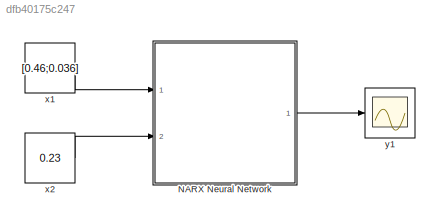
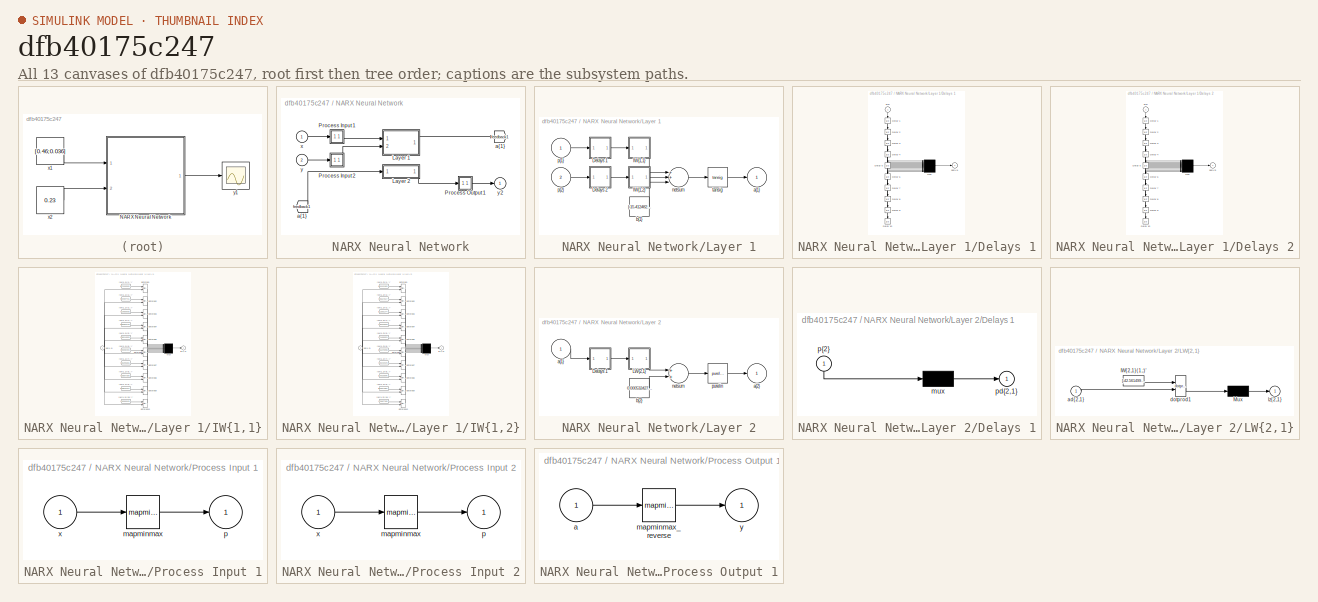
[diagram: thumbnail index - all 13 canvases of the model, root first then tree order]
MODEL slx_dfb40175c247
KIND model
CONFIG AbsTol = auto
CONFIG EnableMultiTasking = off
CONFIG FixedStep = auto
CONFIG MaxStep = auto
CONFIG MinStep = auto
CONFIG RelTol = 1e-3
CONFIG SampleTimeConstraint = Unconstrained
CONFIG Solver = VariableStepAuto
CONFIG SolverName = VariableStepAuto
CONFIG StartTime = 0.0
CONFIG StopTime = 10.0
BLOCK [SubSystem] NARX Neural Network
  Ports = [2, 1]
  RequestExecContextInheritance = off
BLOCK [From] NARX Neural Network/ a{1} 
  GotoTag = feedback1
BLOCK [SubSystem] NARX Neural Network/Layer 1
  Ports = [2, 1]
  RequestExecContextInheritance = off
BLOCK [SubSystem] NARX Neural Network/Layer 1/Delays 1
  Ports = [1, 1]
  RequestExecContextInheritance = off
BLOCK [UnitDelay] NARX Neural Network/Layer 1/Delays 1/Delay 1
  InitialCondition = pi_input_1_delayed_1
BLOCK [UnitDelay] NARX Neural Network/Layer 1/Delays 1/Delay 10
  InitialCondition = pi_input_1_delayed_10
BLOCK [UnitDelay] NARX Neural Network/Layer 1/Delays 1/Delay 2
  InitialCondition = pi_input_1_delayed_2
BLOCK [UnitDelay] NARX Neural Network/Layer 1/Delays 1/Delay 3
  InitialCondition = pi_input_1_delayed_3
BLOCK [UnitDelay] NARX Neural Network/Layer 1/Delays 1/Delay 4
  InitialCondition = pi_input_1_delayed_4
BLOCK [UnitDelay] NARX Neural Network/Layer 1/Delays 1/Delay 5
  InitialCondition = pi_input_1_delayed_5
BLOCK [UnitDelay] NARX Neural Network/Layer 1/Delays 1/Delay 6
  InitialCondition = pi_input_1_delayed_6
BLOCK [UnitDelay] NARX Neural Network/Layer 1/Delays 1/Delay 7
  InitialCondition = pi_input_1_delayed_7
BLOCK [UnitDelay] NARX Neural Network/Layer 1/Delays 1/Delay 8
  InitialCondition = pi_input_1_delayed_8
BLOCK [UnitDelay] NARX Neural Network/Layer 1/Delays 1/Delay 9
  InitialCondition = pi_input_1_delayed_9
BLOCK [Mux] NARX Neural Network/Layer 1/Delays 1/mux
  Inputs = 10
  Ports = [10, 1]
BLOCK [Outport] NARX Neural Network/Layer 1/Delays 1/pd{1,1}
  IconDisplay = Port number
BLOCK [Inport] NARX Neural Network/Layer 1/Delays 1/p{1}
  IconDisplay = Port number
  PortDimensions = 2
  SampleTime = 1
BLOCK [SubSystem] NARX Neural Network/Layer 1/Delays 2
  Ports = [1, 1]
  RequestExecContextInheritance = off
BLOCK [UnitDelay] NARX Neural Network/Layer 1/Delays 2/Delay 1
  InitialCondition = pi_input_2_delayed_1
BLOCK [UnitDelay] NARX Neural Network/Layer 1/Delays 2/Delay 10
  InitialCondition = pi_input_2_delayed_10
BLOCK [UnitDelay] NARX Neural Network/Layer 1/Delays 2/Delay 2
  InitialCondition = pi_input_2_delayed_2
BLOCK [UnitDelay] NARX Neural Network/Layer 1/Delays 2/Delay 3
  InitialCondition = pi_input_2_delayed_3
BLOCK [UnitDelay] NARX Neural Network/Layer 1/Delays 2/Delay 4
  InitialCondition = pi_input_2_delayed_4
BLOCK [UnitDelay] NARX Neural Network/Layer 1/Delays 2/Delay 5
  InitialCondition = pi_input_2_delayed_5
BLOCK [UnitDelay] NARX Neural Network/Layer 1/Delays 2/Delay 6
  InitialCondition = pi_input_2_delayed_6
BLOCK [UnitDelay] NARX Neural Network/Layer 1/Delays 2/Delay 7
  InitialCondition = pi_input_2_delayed_7
BLOCK [UnitDelay] NARX Neural Network/Layer 1/Delays 2/Delay 8
  InitialCondition = pi_input_2_delayed_8
BLOCK [UnitDelay] NARX Neural Network/Layer 1/Delays 2/Delay 9
  InitialCondition = pi_input_2_delayed_9
BLOCK [Mux] NARX Neural Network/Layer 1/Delays 2/mux
  Inputs = 10
  Ports = [10, 1]
BLOCK [Outport] NARX Neural Network/Layer 1/Delays 2/pd{1,2}
  IconDisplay = Port number
BLOCK [Inport] NARX Neural Network/Layer 1/Delays 2/p{1}
  IconDisplay = Port number
  PortDimensions = 1
  SampleTime = 1
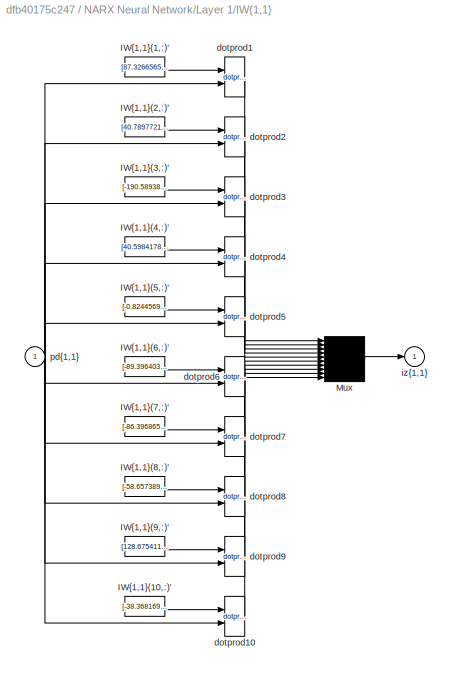
BLOCK [SubSystem] NARX Neural Network/Layer 1/IW{1,1}
  Ports = [1, 1]
  RequestExecContextInheritance = off
BLOCK [Constant] NARX Neural Network/Layer 1/IW{1,1}/IW{1,1}(1,:)'
  Value = [87.3266565234524705374496988952159881591796875;-18.855420592628409082180951372720301151275634765625;-85.7641266500232148928262176923453807830810546875;-21.9098173463618621781279216520488262176513671875;18.7332238363806169445524574257433414459228515625;10.13996998740918087378304335288703441619873046875;-2.002347743872309848711665836162865161895751953125;8.743271869930381967606081161648035049438476...<+637ch>
BLOCK [Constant] NARX Neural Network/Layer 1/IW{1,1}/IW{1,1}(10,:)'
  Value = [-38.368169144587199070883798412978649139404296875;-153.072201241303929464265820570290088653564453125;-156.697550338811396386518026702105998992919921875;-382.35661975705323811780544929206371307373046875;139.886976715736267351530841551721096038818359375;661.4048502399822382358252070844173431396484375;163.5284102239508001730428077280521392822265625;-399.56930623810745828450308181345462799072265625;-...<+593ch>
BLOCK [Constant] NARX Neural Network/Layer 1/IW{1,1}/IW{1,1}(2,:)'
  Value = [40.78977216390131133039176347665488719940185546875;-17.55989027664242740911504370160400867462158203125;-32.9393776400963105288610677234828472137451171875;9.2753383531786113280759309418499469757080078125;9.1986858975187555387265092576853930950164794921875;-11.36475807986781916270047076977789402008056640625;3.380536542940958621983327248017303645610809326171875;14.94354449269568618774428614415228366...<+659ch>
BLOCK [Constant] NARX Neural Network/Layer 1/IW{1,1}/IW{1,1}(3,:)'
  Value = [-190.58938724002308617855305783450603485107421875;16.933674812675004517359411693178117275238037109375;103.608582125062952172811492346227169036865234375;57.46451893904804109070028061978518962860107421875;-198.089944361329145294803311116993427276611328125;-142.6501932710258415681892074644565582275390625;-76.1733895353753638346461229957640171051025390625;273.18649483789488385809818282723426818847656...<+601ch>
BLOCK [Constant] NARX Neural Network/Layer 1/IW{1,1}/IW{1,1}(4,:)'
  Value = [40.5984178844106367023414350114762783050537109375;-17.305270158794602508578464039601385593414306640625;-32.774236652394762359108426608145236968994140625;9.1777831307826058804266722290776669979095458984375;8.9358341877345868198290190775878727436065673828125;-11.2720701320428151603891819831915199756622314453125;3.49951613636606762014480409561656415462493896484375;14.87295536234205073355951753910630...<+651ch>
BLOCK [Constant] NARX Neural Network/Layer 1/IW{1,1}/IW{1,1}(5,:)'
  Value = [-0.82445698182373428064551035276963375508785247802734375;7.8764559996773844119388741091825067996978759765625;-6.2535610694918641883077725651673972606658935546875;4.53950468022659503475324527244083583354949951171875;-1.325816767795277240082896241801790893077850341796875;-3.088073168549824831785599599243141710758209228515625;-9.250084820864390877659388934262096881866455078125;-3.3792446697136657718...<+668ch>
BLOCK [Constant] NARX Neural Network/Layer 1/IW{1,1}/IW{1,1}(6,:)'
  Value = [-89.39640383441206950010382570326328277587890625;276.4756909022368063233443535864353179931640625;82.2655819054169086257388698868453502655029296875;11.3719358966937047483725109486840665340423583984375;93.01736668724896617277408950030803680419921875;-216.203423916639650315119070000946521759033203125;-202.793397617705608126925653778016567230224609375;36.1055719501073184574124752543866634368896484375...<+612ch>
BLOCK [Constant] NARX Neural Network/Layer 1/IW{1,1}/IW{1,1}(7,:)'
  Value = [-86.3968657764367122808835119940340518951416015625;18.44654327674872007492012926377356052398681640625;84.61863840558226002031005918979644775390625;21.572623247197380891293505555950105190277099609375;-18.437794520745246273918382939882576465606689453125;-9.585462867030219769048926536925137042999267578125;1.46269617779315996841660307836718857288360595703125;-8.786889488254290725421924435067921876907...<+644ch>
BLOCK [Constant] NARX Neural Network/Layer 1/IW{1,1}/IW{1,1}(8,:)'
  Value = [-58.6573891689925090986434952355921268463134765625;10.5602222311056692660713451914489269256591796875;52.58787049176599026623080135323107242584228515625;-2.187691415909850167764716388774104416370391845703125;3.604270025283075273847543940064497292041778564453125;5.79841457534296811360263745882548391819000244140625;-15.238229940982908061641865060664713382720947265625;-20.4823483818498068842473003314...<+647ch>
BLOCK [Constant] NARX Neural Network/Layer 1/IW{1,1}/IW{1,1}(9,:)'
  Value = [128.67541168958717889836407266557216644287109375;-78.5729914978140158154928940348327159881591796875;-109.2066697833443100762451649643480777740478515625;19.233706614368610843257556552998721599578857421875;-2.944563980055236118715811244328506290912628173828125;12.6737914294444973251074770814739167690277099609375;-66.7068484238330512425818596966564655303955078125;2.8506893641286326079864466009894385...<+640ch>
BLOCK [Mux] NARX Neural Network/Layer 1/IW{1,1}/Mux
  Inputs = 10
  Ports = [10, 1]
BLOCK [Reference] NARX Neural Network/Layer 1/IW{1,1}/dotprod1  REF=neural/Weight Functions/dotprod
  Ports = [2, 1]
  SourceBlock = neural/Weight Functions/dotprod
  SourceProductBaseCode = NN
  SourceProductName = Neural Network Toolbox
  SourceType = DOTPROD
BLOCK [Reference] NARX Neural Network/Layer 1/IW{1,1}/dotprod10  REF=neural/Weight Functions/dotprod
  Ports = [2, 1]
  SourceBlock = neural/Weight Functions/dotprod
  SourceProductBaseCode = NN
  SourceProductName = Neural Network Toolbox
  SourceType = DOTPROD
BLOCK [Reference] NARX Neural Network/Layer 1/IW{1,1}/dotprod2  REF=neural/Weight Functions/dotprod
  Ports = [2, 1]
  SourceBlock = neural/Weight Functions/dotprod
  SourceProductBaseCode = NN
  SourceProductName = Neural Network Toolbox
  SourceType = DOTPROD
BLOCK [Reference] NARX Neural Network/Layer 1/IW{1,1}/dotprod3  REF=neural/Weight Functions/dotprod
  Ports = [2, 1]
  SourceBlock = neural/Weight Functions/dotprod
  SourceProductBaseCode = NN
  SourceProductName = Neural Network Toolbox
  SourceType = DOTPROD
BLOCK [Reference] NARX Neural Network/Layer 1/IW{1,1}/dotprod4  REF=neural/Weight Functions/dotprod
  Ports = [2, 1]
  SourceBlock = neural/Weight Functions/dotprod
  SourceProductBaseCode = NN
  SourceProductName = Neural Network Toolbox
  SourceType = DOTPROD
BLOCK [Reference] NARX Neural Network/Layer 1/IW{1,1}/dotprod5  REF=neural/Weight Functions/dotprod
  Ports = [2, 1]
  SourceBlock = neural/Weight Functions/dotprod
  SourceProductBaseCode = NN
  SourceProductName = Neural Network Toolbox
  SourceType = DOTPROD
BLOCK [Reference] NARX Neural Network/Layer 1/IW{1,1}/dotprod6  REF=neural/Weight Functions/dotprod
  Ports = [2, 1]
  SourceBlock = neural/Weight Functions/dotprod
  SourceProductBaseCode = NN
  SourceProductName = Neural Network Toolbox
  SourceType = DOTPROD
BLOCK [Reference] NARX Neural Network/Layer 1/IW{1,1}/dotprod7  REF=neural/Weight Functions/dotprod
  Ports = [2, 1]
  SourceBlock = neural/Weight Functions/dotprod
  SourceProductBaseCode = NN
  SourceProductName = Neural Network Toolbox
  SourceType = DOTPROD
BLOCK [Reference] NARX Neural Network/Layer 1/IW{1,1}/dotprod8  REF=neural/Weight Functions/dotprod
  Ports = [2, 1]
  SourceBlock = neural/Weight Functions/dotprod
  SourceProductBaseCode = NN
  SourceProductName = Neural Network Toolbox
  SourceType = DOTPROD
BLOCK [Reference] NARX Neural Network/Layer 1/IW{1,1}/dotprod9  REF=neural/Weight Functions/dotprod
  Ports = [2, 1]
  SourceBlock = neural/Weight Functions/dotprod
  SourceProductBaseCode = NN
  SourceProductName = Neural Network Toolbox
  SourceType = DOTPROD
BLOCK [Outport] NARX Neural Network/Layer 1/IW{1,1}/iz{1,1}
  IconDisplay = Port number
BLOCK [Inport] NARX Neural Network/Layer 1/IW{1,1}/pd{1,1}
  IconDisplay = Port number
  PortDimensions = 20
  SampleTime = 1
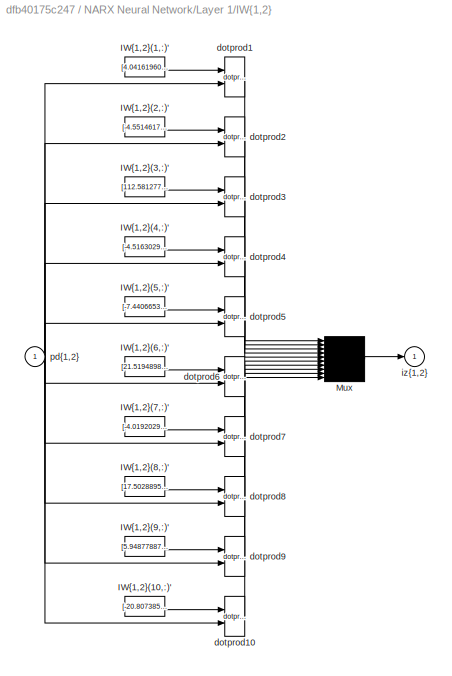
BLOCK [SubSystem] NARX Neural Network/Layer 1/IW{1,2}
  Ports = [1, 1]
  RequestExecContextInheritance = off
BLOCK [Constant] NARX Neural Network/Layer 1/IW{1,2}/IW{1,2}(1,:)'
  Value = [4.04161960088488836362330403062514960765838623046875;-0.2474641601806600588187023959108046256005764007568359375;0.7747145486849882356494845225824974477291107177734375;0.567515263202897468630681032664142549037933349609375;-1.640041440955639640009167123935185372829437255859375;-0.34511621436582373689816449768841266632080078125;-0.391699483442791096532431538435048423707485198974609375;-0.45400038398...<+155ch>
BLOCK [Constant] NARX Neural Network/Layer 1/IW{1,2}/IW{1,2}(10,:)'
  Value = [-20.8073855487904921801600721664726734161376953125;-16.12005675093981693635214469395577907562255859375;-11.3412807924603900033844183781184256076812744140625;100.0577311637440516278729774057865142822265625;12.1808981925906021359651276725344359874725341796875;-6.1760962916439776648758197552524507045745849609375;-6.20943292039362315648531875922344624996185302734375;-7.1532916408052917844884177611675...<+119ch>
BLOCK [Constant] NARX Neural Network/Layer 1/IW{1,2}/IW{1,2}(2,:)'
  Value = [-4.55146178574969173524777943384833633899688720703125;-0.75843056087695337463827627288992516696453094482421875;-0.68376570333241171173455086318426765501499176025390625;8.013257954252150483398509095422923564910888671875;2.345841445318416873533351463265717029571533203125;-0.52777182225594876374685782138840295374393463134765625;-0.414133798532113128754161834876867942512035369873046875;-1.76063447702...<+161ch>
BLOCK [Constant] NARX Neural Network/Layer 1/IW{1,2}/IW{1,2}(3,:)'
  Value = [112.58127777833561822262709029018878936767578125;0.0727643702668232250641011660263757221400737762451171875;-0.26270398212923307124100347209605388343334197998046875;-45.2496484440641921764836297370493412017822265625;-10.706718045087239232771025854162871837615966796875;0.80401133954552028715312417261884547770023345947265625;0.314486205332891177732790310983546078205108642578125;73.133764498305112056...<+136ch>
BLOCK [Constant] NARX Neural Network/Layer 1/IW{1,2}/IW{1,2}(4,:)'
  Value = [-4.51630297300191241305356015800498425960540771484375;-0.74478188780819654102316462740418501198291778564453125;-0.663025767411173472254404259729199111461639404296875;7.93124535533965957512236855109222233295440673828125;2.224009966903796708947993465699255466461181640625;-0.44053447773175447021998252239427529275417327880859375;-0.4247495929452280716276391103747300803661346435546875;-1.7036224464731...<+155ch>
BLOCK [Constant] NARX Neural Network/Layer 1/IW{1,2}/IW{1,2}(5,:)'
  Value = [-7.440665395247659574806675664149224758148193359375;0.273090800292295099449546569303493015468120574951171875;0.67893178556986766292169477310380898416042327880859375;-0.44011180478986655639772607173654250800609588623046875;0.91554440931083791443967356826760806143283843994140625;0.28089239017680178722713435490732081234455108642578125;0.1381677471574931648223838465128210373222827911376953125;-0.2337...<+166ch>
BLOCK [Constant] NARX Neural Network/Layer 1/IW{1,2}/IW{1,2}(6,:)'
  Value = [21.519489851005555891561016323976218700408935546875;20.39487505496416730466080480255186557769775390625;-8.8191099087476398921126019558869302272796630859375;-81.09390182193584450942580588161945343017578125;-14.860775012597247979329040390439331531524658203125;-5.95922775674241478327530785463750362396240234375;4.48235293811326496182800838141702115535736083984375;5.50959998893836822020375620923005044...<+121ch>
BLOCK [Constant] NARX Neural Network/Layer 1/IW{1,2}/IW{1,2}(7,:)'
  Value = [-4.01920298714427826070050286944024264812469482421875;0.2496531697671376670566445454824133776128292083740234375;-0.76057133636450158231667728614411316812038421630859375;-0.5546227186904448824833480102824978530406951904296875;1.6380526348602850728042312766774557530879974365234375;0.341912348473956739791645986770163290202617645263671875;0.37820453611212079270131880548433400690555572509765625;0.4411...<+164ch>
BLOCK [Constant] NARX Neural Network/Layer 1/IW{1,2}/IW{1,2}(8,:)'
  Value = [17.502889543593621368700041784904897212982177734375;-0.82780096205082198679292559972964227199554443359375;-0.956981647533240220582229085266590118408203125;-8.100941897175356842808469082228839397430419921875;-0.92856669506364986066415667664841748774051666259765625;-0.67607607217978060720753319401410408318042755126953125;1.6090302032942485066513427227619104087352752685546875;-11.2993645200627987890...<+144ch>
BLOCK [Constant] NARX Neural Network/Layer 1/IW{1,2}/IW{1,2}(9,:)'
  Value = [5.94877887467993726744452942511998116970062255859375;0.9689932439271944364378441605367697775363922119140625;2.04398740012617619044021921581588685512542724609375;2.1137046674388830780344505910761654376983642578125;-2.779720860061789533546061647939495742321014404296875;-0.88623888974140541119339786746422760188579559326171875;-0.311862660159100801848808259819634258747100830078125;-0.9622138591854981...<+148ch>
BLOCK [Mux] NARX Neural Network/Layer 1/IW{1,2}/Mux
  Inputs = 10
  Ports = [10, 1]
BLOCK [Reference] NARX Neural Network/Layer 1/IW{1,2}/dotprod1  REF=neural/Weight Functions/dotprod
  Ports = [2, 1]
  SourceBlock = neural/Weight Functions/dotprod
  SourceProductBaseCode = NN
  SourceProductName = Neural Network Toolbox
  SourceType = DOTPROD
BLOCK [Reference] NARX Neural Network/Layer 1/IW{1,2}/dotprod10  REF=neural/Weight Functions/dotprod
  Ports = [2, 1]
  SourceBlock = neural/Weight Functions/dotprod
  SourceProductBaseCode = NN
  SourceProductName = Neural Network Toolbox
  SourceType = DOTPROD
BLOCK [Reference] NARX Neural Network/Layer 1/IW{1,2}/dotprod2  REF=neural/Weight Functions/dotprod
  Ports = [2, 1]
  SourceBlock = neural/Weight Functions/dotprod
  SourceProductBaseCode = NN
  SourceProductName = Neural Network Toolbox
  SourceType = DOTPROD
BLOCK [Reference] NARX Neural Network/Layer 1/IW{1,2}/dotprod3  REF=neural/Weight Functions/dotprod
  Ports = [2, 1]
  SourceBlock = neural/Weight Functions/dotprod
  SourceProductBaseCode = NN
  SourceProductName = Neural Network Toolbox
  SourceType = DOTPROD
BLOCK [Reference] NARX Neural Network/Layer 1/IW{1,2}/dotprod4  REF=neural/Weight Functions/dotprod
  Ports = [2, 1]
  SourceBlock = neural/Weight Functions/dotprod
  SourceProductBaseCode = NN
  SourceProductName = Neural Network Toolbox
  SourceType = DOTPROD
BLOCK [Reference] NARX Neural Network/Layer 1/IW{1,2}/dotprod5  REF=neural/Weight Functions/dotprod
  Ports = [2, 1]
  SourceBlock = neural/Weight Functions/dotprod
  SourceProductBaseCode = NN
  SourceProductName = Neural Network Toolbox
  SourceType = DOTPROD
BLOCK [Reference] NARX Neural Network/Layer 1/IW{1,2}/dotprod6  REF=neural/Weight Functions/dotprod
  Ports = [2, 1]
  SourceBlock = neural/Weight Functions/dotprod
  SourceProductBaseCode = NN
  SourceProductName = Neural Network Toolbox
  SourceType = DOTPROD
BLOCK [Reference] NARX Neural Network/Layer 1/IW{1,2}/dotprod7  REF=neural/Weight Functions/dotprod
  Ports = [2, 1]
  SourceBlock = neural/Weight Functions/dotprod
  SourceProductBaseCode = NN
  SourceProductName = Neural Network Toolbox
  SourceType = DOTPROD
BLOCK [Reference] NARX Neural Network/Layer 1/IW{1,2}/dotprod8  REF=neural/Weight Functions/dotprod
  Ports = [2, 1]
  SourceBlock = neural/Weight Functions/dotprod
  SourceProductBaseCode = NN
  SourceProductName = Neural Network Toolbox
  SourceType = DOTPROD
BLOCK [Reference] NARX Neural Network/Layer 1/IW{1,2}/dotprod9  REF=neural/Weight Functions/dotprod
  Ports = [2, 1]
  SourceBlock = neural/Weight Functions/dotprod
  SourceProductBaseCode = NN
  SourceProductName = Neural Network Toolbox
  SourceType = DOTPROD
BLOCK [Outport] NARX Neural Network/Layer 1/IW{1,2}/iz{1,2}
  IconDisplay = Port number
BLOCK [Inport] NARX Neural Network/Layer 1/IW{1,2}/pd{1,2}
  IconDisplay = Port number
  PortDimensions = 10
  SampleTime = 1
BLOCK [Outport] NARX Neural Network/Layer 1/a{1}
  IconDisplay = Port number
  InitialOutput = [0;0;0;0;0;0;0;0;0;0]
BLOCK [Constant] NARX Neural Network/Layer 1/b{1}
  Value = [-15.4124827386213301139150644303299486637115478515625;-5.40722054780900851511660221149213612079620361328125;22.391746385615849845862612710334360599517822265625;-5.3119733780595357330867045675404369831085205078125;11.6357924890127240047377199516631662845611572265625;68.4824837910700097154403920285403728485107421875;15.2970959900694669642007283982820808887481689453125;1.3445282883035172272201407395...<+128ch>
BLOCK [Sum] NARX Neural Network/Layer 1/netsum
  Inputs = 3
  Ports = [3, 1]
BLOCK [Inport] NARX Neural Network/Layer 1/p{1}
  IconDisplay = Port number
  PortDimensions = 2
  SampleTime = 1
BLOCK [Inport] NARX Neural Network/Layer 1/p{2}
  IconDisplay = Port number
  Port = 2
  PortDimensions = 1
  SampleTime = 1
BLOCK [Reference] NARX Neural Network/Layer 1/tansig  REF=neural/Transfer Functions/tansig
  Ports = [1, 1]
  SourceBlock = neural/Transfer Functions/tansig
  SourceProductBaseCode = NN
  SourceProductName = Neural Network Toolbox
  SourceType = TANSIG
BLOCK [SubSystem] NARX Neural Network/Layer 2
  Ports = [1, 1]
  RequestExecContextInheritance = off
BLOCK [SubSystem] NARX Neural Network/Layer 2/Delays 1
  Ports = [1, 1]
  RequestExecContextInheritance = off
BLOCK [Mux] NARX Neural Network/Layer 2/Delays 1/mux
  Inputs = 1
  Ports = [1, 1]
BLOCK [Outport] NARX Neural Network/Layer 2/Delays 1/pd{2,1}
  IconDisplay = Port number
BLOCK [Inport] NARX Neural Network/Layer 2/Delays 1/p{2}
  IconDisplay = Port number
  PortDimensions = 10
  SampleTime = 1
BLOCK [SubSystem] NARX Neural Network/Layer 2/LW{2,1}
  Ports = [1, 1]
  RequestExecContextInheritance = off
BLOCK [Constant] NARX Neural Network/Layer 2/LW{2,1}/IW{2,1}(1,:)'
  Value = [-42.5614993802627878949351725168526172637939453125;-59.62438550358285027641613851301372051239013671875;0.97074958977143721572389267748803831636905670166015625;60.75429574056813208926541847176849842071533203125;0.94033586093645882275637859493144787847995758056640625;0.951605696600445138955137736047618091106414794921875;-42.94594831515768618146466906182467937469482421875;0.9699001474846988823941273...<+138ch>
BLOCK [Mux] NARX Neural Network/Layer 2/LW{2,1}/Mux
  Inputs = 1
  Ports = [1, 1]
BLOCK [Inport] NARX Neural Network/Layer 2/LW{2,1}/ad{2,1}
  IconDisplay = Port number
  PortDimensions = 10
  SampleTime = 1
BLOCK [Reference] NARX Neural Network/Layer 2/LW{2,1}/dotprod1  REF=neural/Weight Functions/dotprod
  Ports = [2, 1]
  SourceBlock = neural/Weight Functions/dotprod
  SourceProductBaseCode = NN
  SourceProductName = Neural Network Toolbox
  SourceType = DOTPROD
BLOCK [Outport] NARX Neural Network/Layer 2/LW{2,1}/lz{2,1}
  IconDisplay = Port number
BLOCK [Inport] NARX Neural Network/Layer 2/a{1} 
  IconDisplay = Port number
  PortDimensions = 10
  SampleTime = 1
BLOCK [Outport] NARX Neural Network/Layer 2/a{2}
  IconDisplay = Port number
  InitialOutput = 0
BLOCK [Constant] NARX Neural Network/Layer 2/b{2}
  Value = 0.000532427355335442632593145884101204501348547637462615966796875
BLOCK [Sum] NARX Neural Network/Layer 2/netsum
  Inputs = 2
  Ports = [2, 1]
BLOCK [Reference] NARX Neural Network/Layer 2/purelin  REF=neural/Transfer Functions/purelin
  Ports = [1, 1]
  SourceBlock = neural/Transfer Functions/purelin
  SourceProductBaseCode = NN
  SourceProductName = Neural Network Toolbox
  SourceType = PURELIN
BLOCK [SubSystem] NARX Neural Network/Process Input 1
  Ports = [1, 1]
  RequestExecContextInheritance = off
BLOCK [Reference] NARX Neural Network/Process Input 1/mapminmax  REF=neural/Processing Functions/mapminmax
  Ports = [1, 1]
  SourceBlock = neural/Processing Functions/mapminmax
  SourceProductBaseCode = NN
  SourceProductName = Neural Network Toolbox
  SourceType = MAPMINMAX Preprocess
BLOCK [Outport] NARX Neural Network/Process Input 1/p
  IconDisplay = Port number
  PortDimensions = 2
  SampleTime = 1
BLOCK [Inport] NARX Neural Network/Process Input 1/x
  IconDisplay = Port number
  PortDimensions = 2
  SampleTime = 1
BLOCK [SubSystem] NARX Neural Network/Process Input 2
  Ports = [1, 1]
  RequestExecContextInheritance = off
BLOCK [Reference] NARX Neural Network/Process Input 2/mapminmax  REF=neural/Processing Functions/mapminmax
  Ports = [1, 1]
  SourceBlock = neural/Processing Functions/mapminmax
  SourceProductBaseCode = NN
  SourceProductName = Neural Network Toolbox
  SourceType = MAPMINMAX Preprocess
BLOCK [Outport] NARX Neural Network/Process Input 2/p
  IconDisplay = Port number
  PortDimensions = 1
  SampleTime = 1
BLOCK [Inport] NARX Neural Network/Process Input 2/x
  IconDisplay = Port number
  PortDimensions = 1
  SampleTime = 1
BLOCK [SubSystem] NARX Neural Network/Process Output 1
  Ports = [1, 1]
  RequestExecContextInheritance = off
BLOCK [Inport] NARX Neural Network/Process Output 1/a
  IconDisplay = Port number
  PortDimensions = 1
  SampleTime = 1
BLOCK [Reference] NARX Neural Network/Process Output 1/mapminmax_reverse  REF=neural/Processing Functions/mapminmax_reverse
  Ports = [1, 1]
  SourceBlock = neural/Processing Functions/mapminmax_reverse
  SourceProductBaseCode = NN
  SourceProductName = Neural Network Toolbox
  SourceType = MAPMINMAX Reverse Process
BLOCK [Outport] NARX Neural Network/Process Output 1/y
  IconDisplay = Port number
  PortDimensions = 1
  SampleTime = 1
BLOCK [Goto] NARX Neural Network/a{1}
  GotoTag = feedback1
BLOCK [Inport] NARX Neural Network/x
  IconDisplay = Port number
  PortDimensions = 2
  SampleTime = 1
BLOCK [Inport] NARX Neural Network/y
  IconDisplay = Port number
  Port = 2
  PortDimensions = 1
  SampleTime = 1
BLOCK [Outport] NARX Neural Network/y2
  IconDisplay = Port number
  InitialOutput = 0
BLOCK [Constant] x1
  SampleTime = 1
  Value = [0.46;0.036]
BLOCK [Constant] x2
  SampleTime = 1
  Value = 0.23
BLOCK [Scope] y1
  Floating = off
  NumInputPorts = 1
  Ports = [1]
LINE NARX Neural Network/ a{1} :1 -> NARX Neural Network/Layer 2:1
LINE NARX Neural Network/Layer 1/Delays 1/Delay 10:1 -> NARX Neural Network/Layer 1/Delays 1/mux:10
NET NARX Neural Network/Layer 1/Delays 1/Delay 1:1 -> NARX Neural Network/Layer 1/Delays 1/Delay 2:1, NARX Neural Network/Layer 1/Delays 1/mux:1
NET NARX Neural Network/Layer 1/Delays 1/Delay 2:1 -> NARX Neural Network/Layer 1/Delays 1/Delay 3:1, NARX Neural Network/Layer 1/Delays 1/mux:2
NET NARX Neural Network/Layer 1/Delays 1/Delay 3:1 -> NARX Neural Network/Layer 1/Delays 1/Delay 4:1, NARX Neural Network/Layer 1/Delays 1/mux:3
NET NARX Neural Network/Layer 1/Delays 1/Delay 4:1 -> NARX Neural Network/Layer 1/Delays 1/Delay 5:1, NARX Neural Network/Layer 1/Delays 1/mux:4
NET NARX Neural Network/Layer 1/Delays 1/Delay 5:1 -> NARX Neural Network/Layer 1/Delays 1/Delay 6:1, NARX Neural Network/Layer 1/Delays 1/mux:5
NET NARX Neural Network/Layer 1/Delays 1/Delay 6:1 -> NARX Neural Network/Layer 1/Delays 1/Delay 7:1, NARX Neural Network/Layer 1/Delays 1/mux:6
NET NARX Neural Network/Layer 1/Delays 1/Delay 7:1 -> NARX Neural Network/Layer 1/Delays 1/Delay 8:1, NARX Neural Network/Layer 1/Delays 1/mux:7
NET NARX Neural Network/Layer 1/Delays 1/Delay 8:1 -> NARX Neural Network/Layer 1/Delays 1/Delay 9:1, NARX Neural Network/Layer 1/Delays 1/mux:8
NET NARX Neural Network/Layer 1/Delays 1/Delay 9:1 -> NARX Neural Network/Layer 1/Delays 1/Delay 10:1, NARX Neural Network/Layer 1/Delays 1/mux:9
LINE NARX Neural Network/Layer 1/Delays 1/mux:1 -> NARX Neural Network/Layer 1/Delays 1/pd{1,1}:1
LINE NARX Neural Network/Layer 1/Delays 1/p{1}:1 -> NARX Neural Network/Layer 1/Delays 1/Delay 1:1
LINE NARX Neural Network/Layer 1/Delays 1:1 -> NARX Neural Network/Layer 1/IW{1,1}:1
LINE NARX Neural Network/Layer 1/Delays 2/Delay 10:1 -> NARX Neural Network/Layer 1/Delays 2/mux:10
NET NARX Neural Network/Layer 1/Delays 2/Delay 1:1 -> NARX Neural Network/Layer 1/Delays 2/Delay 2:1, NARX Neural Network/Layer 1/Delays 2/mux:1
NET NARX Neural Network/Layer 1/Delays 2/Delay 2:1 -> NARX Neural Network/Layer 1/Delays 2/Delay 3:1, NARX Neural Network/Layer 1/Delays 2/mux:2
NET NARX Neural Network/Layer 1/Delays 2/Delay 3:1 -> NARX Neural Network/Layer 1/Delays 2/Delay 4:1, NARX Neural Network/Layer 1/Delays 2/mux:3
NET NARX Neural Network/Layer 1/Delays 2/Delay 4:1 -> NARX Neural Network/Layer 1/Delays 2/Delay 5:1, NARX Neural Network/Layer 1/Delays 2/mux:4
NET NARX Neural Network/Layer 1/Delays 2/Delay 5:1 -> NARX Neural Network/Layer 1/Delays 2/Delay 6:1, NARX Neural Network/Layer 1/Delays 2/mux:5
NET NARX Neural Network/Layer 1/Delays 2/Delay 6:1 -> NARX Neural Network/Layer 1/Delays 2/Delay 7:1, NARX Neural Network/Layer 1/Delays 2/mux:6
NET NARX Neural Network/Layer 1/Delays 2/Delay 7:1 -> NARX Neural Network/Layer 1/Delays 2/Delay 8:1, NARX Neural Network/Layer 1/Delays 2/mux:7
NET NARX Neural Network/Layer 1/Delays 2/Delay 8:1 -> NARX Neural Network/Layer 1/Delays 2/Delay 9:1, NARX Neural Network/Layer 1/Delays 2/mux:8
NET NARX Neural Network/Layer 1/Delays 2/Delay 9:1 -> NARX Neural Network/Layer 1/Delays 2/Delay 10:1, NARX Neural Network/Layer 1/Delays 2/mux:9
LINE NARX Neural Network/Layer 1/Delays 2/mux:1 -> NARX Neural Network/Layer 1/Delays 2/pd{1,2}:1
LINE NARX Neural Network/Layer 1/Delays 2/p{1}:1 -> NARX Neural Network/Layer 1/Delays 2/Delay 1:1
LINE NARX Neural Network/Layer 1/Delays 2:1 -> NARX Neural Network/Layer 1/IW{1,2}:1
LINE NARX Neural Network/Layer 1/IW{1,1}/IW{1,1}(1,:)':1 -> NARX Neural Network/Layer 1/IW{1,1}/dotprod1:1
LINE NARX Neural Network/Layer 1/IW{1,1}/IW{1,1}(10,:)':1 -> NARX Neural Network/Layer 1/IW{1,1}/dotprod10:1
LINE NARX Neural Network/Layer 1/IW{1,1}/IW{1,1}(2,:)':1 -> NARX Neural Network/Layer 1/IW{1,1}/dotprod2:1
LINE NARX Neural Network/Layer 1/IW{1,1}/IW{1,1}(3,:)':1 -> NARX Neural Network/Layer 1/IW{1,1}/dotprod3:1
LINE NARX Neural Network/Layer 1/IW{1,1}/IW{1,1}(4,:)':1 -> NARX Neural Network/Layer 1/IW{1,1}/dotprod4:1
LINE NARX Neural Network/Layer 1/IW{1,1}/IW{1,1}(5,:)':1 -> NARX Neural Network/Layer 1/IW{1,1}/dotprod5:1
LINE NARX Neural Network/Layer 1/IW{1,1}/IW{1,1}(6,:)':1 -> NARX Neural Network/Layer 1/IW{1,1}/dotprod6:1
LINE NARX Neural Network/Layer 1/IW{1,1}/IW{1,1}(7,:)':1 -> NARX Neural Network/Layer 1/IW{1,1}/dotprod7:1
LINE NARX Neural Network/Layer 1/IW{1,1}/IW{1,1}(8,:)':1 -> NARX Neural Network/Layer 1/IW{1,1}/dotprod8:1
LINE NARX Neural Network/Layer 1/IW{1,1}/IW{1,1}(9,:)':1 -> NARX Neural Network/Layer 1/IW{1,1}/dotprod9:1
LINE NARX Neural Network/Layer 1/IW{1,1}/Mux:1 -> NARX Neural Network/Layer 1/IW{1,1}/iz{1,1}:1
LINE NARX Neural Network/Layer 1/IW{1,1}/dotprod10:1 -> NARX Neural Network/Layer 1/IW{1,1}/Mux:10
LINE NARX Neural Network/Layer 1/IW{1,1}/dotprod1:1 -> NARX Neural Network/Layer 1/IW{1,1}/Mux:1
LINE NARX Neural Network/Layer 1/IW{1,1}/dotprod2:1 -> NARX Neural Network/Layer 1/IW{1,1}/Mux:2
LINE NARX Neural Network/Layer 1/IW{1,1}/dotprod3:1 -> NARX Neural Network/Layer 1/IW{1,1}/Mux:3
LINE NARX Neural Network/Layer 1/IW{1,1}/dotprod4:1 -> NARX Neural Network/Layer 1/IW{1,1}/Mux:4
LINE NARX Neural Network/Layer 1/IW{1,1}/dotprod5:1 -> NARX Neural Network/Layer 1/IW{1,1}/Mux:5
LINE NARX Neural Network/Layer 1/IW{1,1}/dotprod6:1 -> NARX Neural Network/Layer 1/IW{1,1}/Mux:6
LINE NARX Neural Network/Layer 1/IW{1,1}/dotprod7:1 -> NARX Neural Network/Layer 1/IW{1,1}/Mux:7
LINE NARX Neural Network/Layer 1/IW{1,1}/dotprod8:1 -> NARX Neural Network/Layer 1/IW{1,1}/Mux:8
LINE NARX Neural Network/Layer 1/IW{1,1}/dotprod9:1 -> NARX Neural Network/Layer 1/IW{1,1}/Mux:9
NET NARX Neural Network/Layer 1/IW{1,1}/pd{1,1}:1 -> NARX Neural Network/Layer 1/IW{1,1}/dotprod10:2, NARX Neural Network/Layer 1/IW{1,1}/dotprod1:2, NARX Neural Network/Layer 1/IW{1,1}/dotprod2:2, NARX Neural Network/Layer 1/IW{1,1}/dotprod3:2, NARX Neural Network/Layer 1/IW{1,1}/dotprod4:2, NARX Neural Network/Layer 1/IW{1,1}/dotprod5:2, NARX Neural Network/Layer 1/IW{1,1}/dotprod6:2, NARX Neural Network/Layer 1/IW{1,1}/dotprod7:2, NARX Neural Network/Layer 1/IW{1,1}/dotprod8:2, NARX Neural Network/Layer 1/IW{1,1}/dotprod9:2
LINE NARX Neural Network/Layer 1/IW{1,1}:1 -> NARX Neural Network/Layer 1/netsum:1
LINE NARX Neural Network/Layer 1/IW{1,2}/IW{1,2}(1,:)':1 -> NARX Neural Network/Layer 1/IW{1,2}/dotprod1:1
LINE NARX Neural Network/Layer 1/IW{1,2}/IW{1,2}(10,:)':1 -> NARX Neural Network/Layer 1/IW{1,2}/dotprod10:1
LINE NARX Neural Network/Layer 1/IW{1,2}/IW{1,2}(2,:)':1 -> NARX Neural Network/Layer 1/IW{1,2}/dotprod2:1
LINE NARX Neural Network/Layer 1/IW{1,2}/IW{1,2}(3,:)':1 -> NARX Neural Network/Layer 1/IW{1,2}/dotprod3:1
LINE NARX Neural Network/Layer 1/IW{1,2}/IW{1,2}(4,:)':1 -> NARX Neural Network/Layer 1/IW{1,2}/dotprod4:1
LINE NARX Neural Network/Layer 1/IW{1,2}/IW{1,2}(5,:)':1 -> NARX Neural Network/Layer 1/IW{1,2}/dotprod5:1
LINE NARX Neural Network/Layer 1/IW{1,2}/IW{1,2}(6,:)':1 -> NARX Neural Network/Layer 1/IW{1,2}/dotprod6:1
LINE NARX Neural Network/Layer 1/IW{1,2}/IW{1,2}(7,:)':1 -> NARX Neural Network/Layer 1/IW{1,2}/dotprod7:1
LINE NARX Neural Network/Layer 1/IW{1,2}/IW{1,2}(8,:)':1 -> NARX Neural Network/Layer 1/IW{1,2}/dotprod8:1
LINE NARX Neural Network/Layer 1/IW{1,2}/IW{1,2}(9,:)':1 -> NARX Neural Network/Layer 1/IW{1,2}/dotprod9:1
LINE NARX Neural Network/Layer 1/IW{1,2}/Mux:1 -> NARX Neural Network/Layer 1/IW{1,2}/iz{1,2}:1
LINE NARX Neural Network/Layer 1/IW{1,2}/dotprod10:1 -> NARX Neural Network/Layer 1/IW{1,2}/Mux:10
LINE NARX Neural Network/Layer 1/IW{1,2}/dotprod1:1 -> NARX Neural Network/Layer 1/IW{1,2}/Mux:1
LINE NARX Neural Network/Layer 1/IW{1,2}/dotprod2:1 -> NARX Neural Network/Layer 1/IW{1,2}/Mux:2
LINE NARX Neural Network/Layer 1/IW{1,2}/dotprod3:1 -> NARX Neural Network/Layer 1/IW{1,2}/Mux:3
LINE NARX Neural Network/Layer 1/IW{1,2}/dotprod4:1 -> NARX Neural Network/Layer 1/IW{1,2}/Mux:4
LINE NARX Neural Network/Layer 1/IW{1,2}/dotprod5:1 -> NARX Neural Network/Layer 1/IW{1,2}/Mux:5
LINE NARX Neural Network/Layer 1/IW{1,2}/dotprod6:1 -> NARX Neural Network/Layer 1/IW{1,2}/Mux:6
LINE NARX Neural Network/Layer 1/IW{1,2}/dotprod7:1 -> NARX Neural Network/Layer 1/IW{1,2}/Mux:7
LINE NARX Neural Network/Layer 1/IW{1,2}/dotprod8:1 -> NARX Neural Network/Layer 1/IW{1,2}/Mux:8
LINE NARX Neural Network/Layer 1/IW{1,2}/dotprod9:1 -> NARX Neural Network/Layer 1/IW{1,2}/Mux:9
NET NARX Neural Network/Layer 1/IW{1,2}/pd{1,2}:1 -> NARX Neural Network/Layer 1/IW{1,2}/dotprod10:2, NARX Neural Network/Layer 1/IW{1,2}/dotprod1:2, NARX Neural Network/Layer 1/IW{1,2}/dotprod2:2, NARX Neural Network/Layer 1/IW{1,2}/dotprod3:2, NARX Neural Network/Layer 1/IW{1,2}/dotprod4:2, NARX Neural Network/Layer 1/IW{1,2}/dotprod5:2, NARX Neural Network/Layer 1/IW{1,2}/dotprod6:2, NARX Neural Network/Layer 1/IW{1,2}/dotprod7:2, NARX Neural Network/Layer 1/IW{1,2}/dotprod8:2, NARX Neural Network/Layer 1/IW{1,2}/dotprod9:2
LINE NARX Neural Network/Layer 1/IW{1,2}:1 -> NARX Neural Network/Layer 1/netsum:2
LINE NARX Neural Network/Layer 1/b{1}:1 -> NARX Neural Network/Layer 1/netsum:3
LINE NARX Neural Network/Layer 1/netsum:1 -> NARX Neural Network/Layer 1/tansig:1
LINE NARX Neural Network/Layer 1/p{1}:1 -> NARX Neural Network/Layer 1/Delays 1:1
LINE NARX Neural Network/Layer 1/p{2}:1 -> NARX Neural Network/Layer 1/Delays 2:1
LINE NARX Neural Network/Layer 1/tansig:1 -> NARX Neural Network/Layer 1/a{1}:1
LINE NARX Neural Network/Layer 1:1 -> NARX Neural Network/a{1}:1
LINE NARX Neural Network/Layer 2/Delays 1/mux:1 -> NARX Neural Network/Layer 2/Delays 1/pd{2,1}:1
LINE NARX Neural Network/Layer 2/Delays 1/p{2}:1 -> NARX Neural Network/Layer 2/Delays 1/mux:1
LINE NARX Neural Network/Layer 2/Delays 1:1 -> NARX Neural Network/Layer 2/LW{2,1}:1
LINE NARX Neural Network/Layer 2/LW{2,1}/IW{2,1}(1,:)':1 -> NARX Neural Network/Layer 2/LW{2,1}/dotprod1:1
LINE NARX Neural Network/Layer 2/LW{2,1}/Mux:1 -> NARX Neural Network/Layer 2/LW{2,1}/lz{2,1}:1
LINE NARX Neural Network/Layer 2/LW{2,1}/ad{2,1}:1 -> NARX Neural Network/Layer 2/LW{2,1}/dotprod1:2
LINE NARX Neural Network/Layer 2/LW{2,1}/dotprod1:1 -> NARX Neural Network/Layer 2/LW{2,1}/Mux:1
LINE NARX Neural Network/Layer 2/LW{2,1}:1 -> NARX Neural Network/Layer 2/netsum:1
LINE NARX Neural Network/Layer 2/a{1} :1 -> NARX Neural Network/Layer 2/Delays 1:1
LINE NARX Neural Network/Layer 2/b{2}:1 -> NARX Neural Network/Layer 2/netsum:2
LINE NARX Neural Network/Layer 2/netsum:1 -> NARX Neural Network/Layer 2/purelin:1
LINE NARX Neural Network/Layer 2/purelin:1 -> NARX Neural Network/Layer 2/a{2}:1
LINE NARX Neural Network/Layer 2:1 -> NARX Neural Network/Process Output 1:1
LINE NARX Neural Network/Process Input 1/mapminmax:1 -> NARX Neural Network/Process Input 1/p:1
LINE NARX Neural Network/Process Input 1/x:1 -> NARX Neural Network/Process Input 1/mapminmax:1
LINE NARX Neural Network/Process Input 1:1 -> NARX Neural Network/Layer 1:1
LINE NARX Neural Network/Process Input 2/mapminmax:1 -> NARX Neural Network/Process Input 2/p:1
LINE NARX Neural Network/Process Input 2/x:1 -> NARX Neural Network/Process Input 2/mapminmax:1
LINE NARX Neural Network/Process Input 2:1 -> NARX Neural Network/Layer 1:2
LINE NARX Neural Network/Process Output 1/a:1 -> NARX Neural Network/Process Output 1/mapminmax_reverse:1
LINE NARX Neural Network/Process Output 1/mapminmax_reverse:1 -> NARX Neural Network/Process Output 1/y:1
LINE NARX Neural Network/Process Output 1:1 -> NARX Neural Network/y2:1
LINE NARX Neural Network/x:1 -> NARX Neural Network/Process Input 1:1
LINE NARX Neural Network/y:1 -> NARX Neural Network/Process Input 2:1
LINE NARX Neural Network:1 -> y1:1
LINE x1:1 -> NARX Neural Network:1
LINE x2:1 -> NARX Neural Network:2
note: NET lines group one-source signal fan-out (src -> all destinations, sorted); 1:1 wires keep LINE
